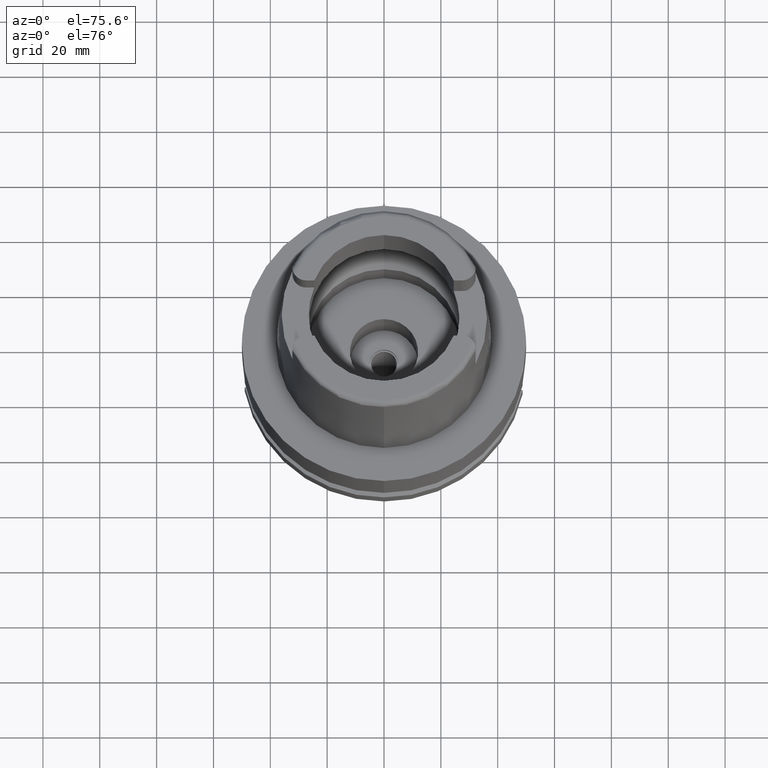
[diagram: clean part render]
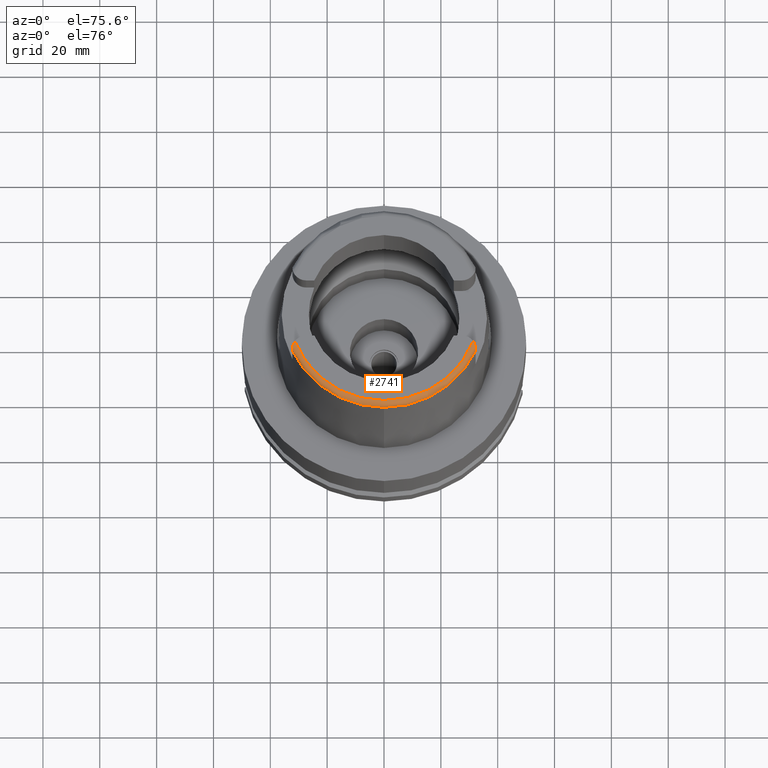
[diagram: same view with one face highlighted and labeled with its STEP entity id]
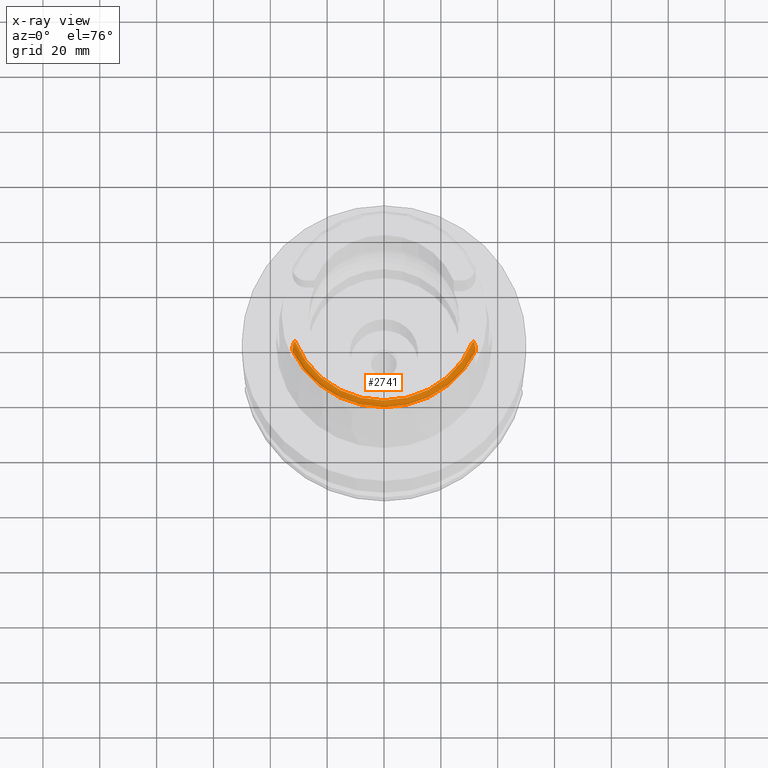
[diagram: x-ray of the same camera — body ghosted, the highlighted face saturated]
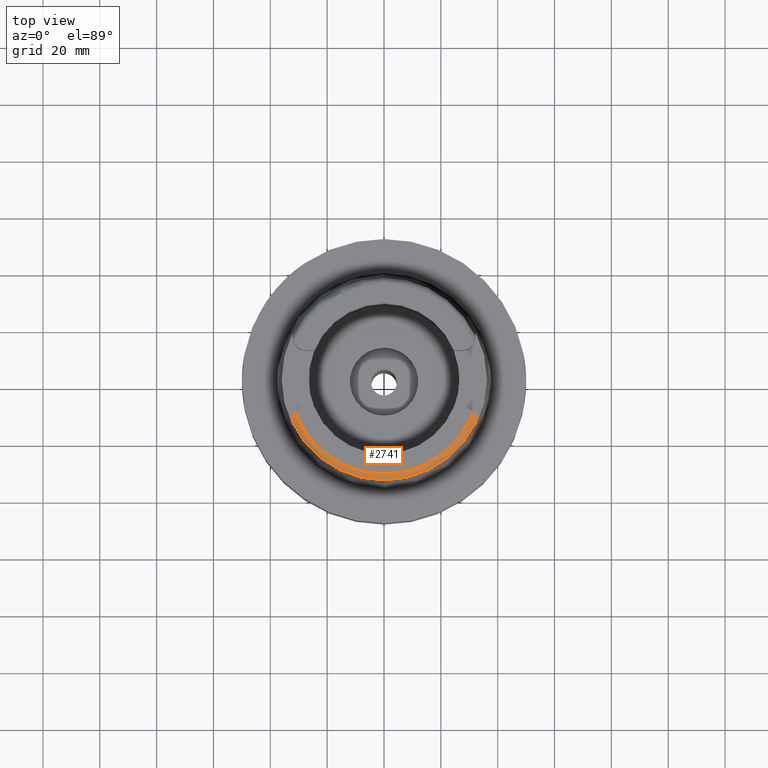
[diagram: same view with one face highlighted and labeled with its STEP entity id]
A machine part, auxiliary view. The second image highlights one B-rep face of the part: STEP entity #2741.
The next image is the same camera in x-ray: the body ghosted, the highlighted face saturated — about 0% of this face is hidden behind the body in this view.
A second angle (top view) of the same face is appended — the face is thin or edge-on in the first view.
In plain terms, the highlighted toroidal blend (fillet) surface has major radius 33.5974 mm and minor (blend) radius 2 mm.
Its self-contained STEP definition (entity closure, byte-faithful):
#199=CARTESIAN_POINT('',(0.E0,0.E0,5.E1));
#200=DIRECTION('',(0.E0,0.E0,-1.E0));
#201=DIRECTION('',(9.332215253018E-1,-3.593015233942E-1,0.E0));
#202=AXIS2_PLACEMENT_3D('',#199,#200,#201);
#221=CARTESIAN_POINT('',(-3.224999491821E1,-1.506448480698E1,4.809973263365E1));
#222=CARTESIAN_POINT('',(-3.224999491821E1,-1.505849839200E1,4.815040220210E1));
#223=CARTESIAN_POINT('',(-3.225000237150E1,-1.503764320314E1,4.825062301790E1));
#224=CARTESIAN_POINT('',(-3.224999932243E1,-1.497890065300E1,4.840085302450E1));
#225=CARTESIAN_POINT('',(-3.225E1,-1.492253372077E1,4.849794187636E1));
#226=CARTESIAN_POINT('',(-3.225E1,-1.489E1,4.854599893822E1));
#231=CARTESIAN_POINT('',(-3.225E1,-1.489E1,4.854599893822E1));
#232=CARTESIAN_POINT('',(-3.225E1,-1.484233728659E1,4.861640373399E1));
#233=CARTESIAN_POINT('',(-3.224866894580E1,-1.472998270608E1,4.875710151814E1));
#234=CARTESIAN_POINT('',(-3.223716255324E1,-1.450949351598E1,4.897051104878E1));
#235=CARTESIAN_POINT('',(-3.221001599433E1,-1.424441210364E1,4.918029235868E1));
#236=CARTESIAN_POINT('',(-3.215912399422E1,-1.393242413653E1,4.938731338261E1));
#237=CARTESIAN_POINT('',(-3.207548715482E1,-1.357679416946E1,4.958515418322E1));
#238=CARTESIAN_POINT('',(-3.194713455543E1,-1.317932750308E1,4.976460776751E1));
#239=CARTESIAN_POINT('',(-3.177564482088E1,-1.277554595736E1,4.990206992589E1));
#240=CARTESIAN_POINT('',(-3.156718313285E1,-1.238875188011E1,4.998468051269E1));
#241=CARTESIAN_POINT('',(-3.142522554167E1,-1.217249782287E1,5.E1));
#242=CARTESIAN_POINT('',(-3.135385269249E1,-1.207161079257E1,5.E1));
#247=CARTESIAN_POINT('',(3.135385269249E1,-1.207161079257E1,5.E1));
#248=CARTESIAN_POINT('',(3.142526512838E1,-1.217255377953E1,5.E1));
#249=CARTESIAN_POINT('',(3.156730839123E1,-1.238896970757E1,4.998464397632E1));
#250=CARTESIAN_POINT('',(3.177575676746E1,-1.277572691454E1,4.990204644269E1));
#251=CARTESIAN_POINT('',(3.194756124155E1,-1.318046895742E1,4.976415661633E1));
#252=CARTESIAN_POINT('',(3.207546796834E1,-1.357685297499E1,4.958508301795E1));
#253=CARTESIAN_POINT('',(3.215905712653E1,-1.393205488097E1,4.938754393468E1));
#254=CARTESIAN_POINT('',(3.221007609173E1,-1.424470716333E1,4.918012209755E1));
#255=CARTESIAN_POINT('',(3.223728167505E1,-1.451084908926E1,4.896939591304E1));
#256=CARTESIAN_POINT('',(3.224870854753E1,-1.473150176316E1,4.875542600294E1));
#257=CARTESIAN_POINT('',(3.225E1,-1.484287547534E1,4.861560875053E1));
#258=CARTESIAN_POINT('',(3.225E1,-1.489E1,4.854599893822E1));
#263=CARTESIAN_POINT('',(3.225E1,-1.489E1,4.854599893822E1));
#264=CARTESIAN_POINT('',(3.225E1,-1.492391140174E1,4.849590684016E1));
#265=CARTESIAN_POINT('',(3.225000073602E1,-1.498154634535E1,4.839572395546E1));
#266=CARTESIAN_POINT('',(3.224999742392E1,-1.503933310801E1,4.824462096051E1));
#267=CARTESIAN_POINT('',(3.225000552017E1,-1.505878152738E1,4.814758248373E1));
#268=CARTESIAN_POINT('',(3.225000552017E1,-1.506439831465E1,4.810004147836E1));
#273=CARTESIAN_POINT('',(0.E0,0.E0,4.809987853799E1));
#274=DIRECTION('',(0.E0,0.E0,-1.E0));
#275=DIRECTION('',(9.060280460805E-1,-4.232176505246E-1,0.E0));
#276=AXIS2_PLACEMENT_3D('',#273,#274,#275);
#281=CARTESIAN_POINT('',(0.E0,0.E0,4.809987853799E1));
#282=DIRECTION('',(0.E0,0.E0,-1.E0));
#283=DIRECTION('',(0.E0,-1.E0,0.E0));
#284=AXIS2_PLACEMENT_3D('',#281,#282,#283);
#2263=CARTESIAN_POINT('',(-3.135385269249E1,-1.207161079257E1,5.E1));
#2265=VERTEX_POINT('',#2263);
#2275=CARTESIAN_POINT('',(3.135385269249E1,-1.207161079257E1,5.E1));
#2276=VERTEX_POINT('',#2275);
#2299=VERTEX_POINT('',#231);
#2306=VERTEX_POINT('',#221);
#2307=VERTEX_POINT('',#258);
#2308=VERTEX_POINT('',#268);
#2309=CARTESIAN_POINT('',(1.065814103640E-14,-3.559494289391E1,
4.809987853799E1));
#2310=VERTEX_POINT('',#2309);
#2722=CARTESIAN_POINT('',(0.E0,0.E0,4.8E1));
#2723=DIRECTION('',(0.E0,0.E0,1.E0));
#2724=DIRECTION('',(-4.184165975220E-4,-9.999999124638E-1,0.E0));
#2725=AXIS2_PLACEMENT_3D('',#2722,#2723,#2724);
#2726=TOROIDAL_SURFACE('',#2725,3.359743838136E1,2.E0);
#2728=ORIENTED_EDGE('',*,*,#2727,.T.);
#2729=ORIENTED_EDGE('',*,*,#2713,.T.);
#2730=ORIENTED_EDGE('',*,*,#2702,.F.);
#2732=ORIENTED_EDGE('',*,*,#2731,.T.);
#2734=ORIENTED_EDGE('',*,*,#2733,.T.);
#2736=ORIENTED_EDGE('',*,*,#2735,.T.);
#2738=ORIENTED_EDGE('',*,*,#2737,.T.);
#2739=EDGE_LOOP('',(#2728,#2729,#2730,#2732,#2734,#2736,#2738));
#2740=FACE_OUTER_BOUND('',#2739,.F.);
#203=CIRCLE('',#202,3.359743838136E1);
#227=B_SPLINE_CURVE_WITH_KNOTS('',3,(#221,#222,#223,#224,#225,#226),
.UNSPECIFIED.,.F.,.F.,(4,1,1,4),(0.E0,3.333333333333E-1,6.666666666667E-1,1.E0),
.UNSPECIFIED.);
#243=B_SPLINE_CURVE_WITH_KNOTS('',3,(#231,#232,#233,#234,#235,#236,#237,#238,
#239,#240,#241,#242),.UNSPECIFIED.,.F.,.F.,(4,1,1,1,1,1,1,1,1,4),(0.E0,
1.111111111111E-1,2.222222222222E-1,3.333333333333E-1,4.444444444444E-1,
5.555555555556E-1,6.666666666667E-1,7.777777777778E-1,8.888888888889E-1,1.E0),
.UNSPECIFIED.);
#259=B_SPLINE_CURVE_WITH_KNOTS('',3,(#247,#248,#249,#250,#251,#252,#253,#254,
#255,#256,#257,#258),.UNSPECIFIED.,.F.,.F.,(4,1,1,1,1,1,1,1,1,4),(0.E0,
1.111111111111E-1,2.222222222222E-1,3.333333333333E-1,4.444444444444E-1,
5.555555555556E-1,6.666666666667E-1,7.777777777778E-1,8.888888888889E-1,1.E0),
.UNSPECIFIED.);
#269=B_SPLINE_CURVE_WITH_KNOTS('',3,(#263,#264,#265,#266,#267,#268),
.UNSPECIFIED.,.F.,.F.,(4,1,1,4),(0.E0,3.333333333333E-1,6.666666666667E-1,1.E0),
.UNSPECIFIED.);
#277=CIRCLE('',#276,3.559494289391E1);
#285=CIRCLE('',#284,3.559494289391E1);
#2702=EDGE_CURVE('',#2276,#2265,#203,.T.);
#2713=EDGE_CURVE('',#2299,#2265,#243,.T.);
#2727=EDGE_CURVE('',#2306,#2299,#227,.T.);
#2731=EDGE_CURVE('',#2276,#2307,#259,.T.);
#2733=EDGE_CURVE('',#2307,#2308,#269,.T.);
#2735=EDGE_CURVE('',#2308,#2310,#277,.T.);
#2737=EDGE_CURVE('',#2310,#2306,#285,.T.);
#2741=ADVANCED_FACE('',(#2740),#2726,.T.);